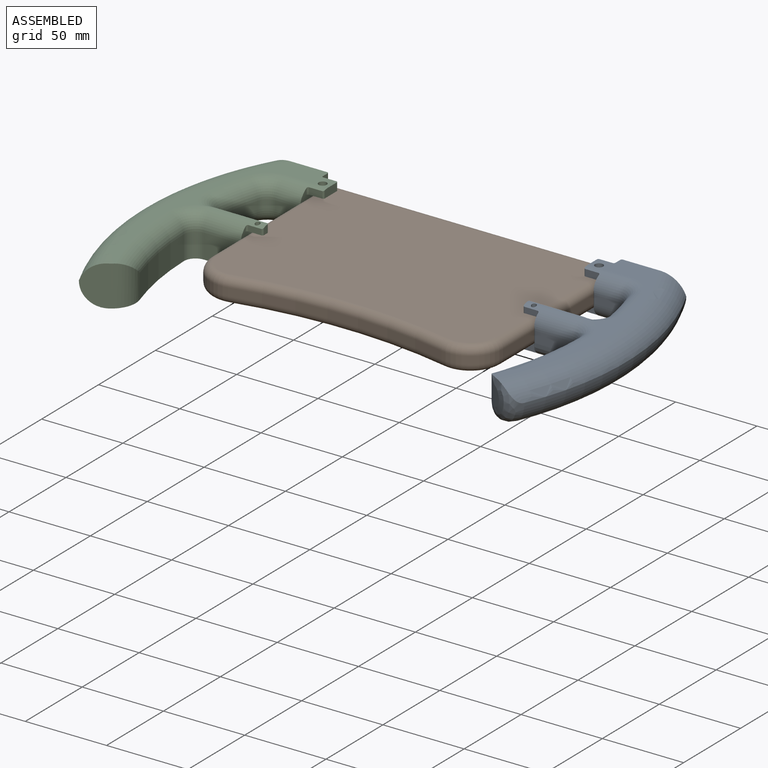
[diagram: assembled view]
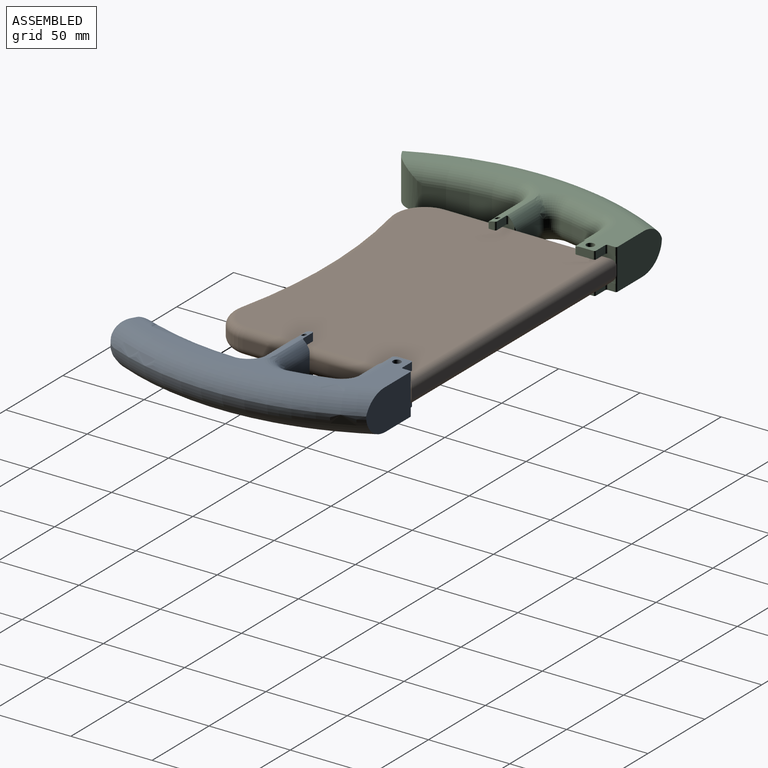
[diagram: assembled view, second angle]
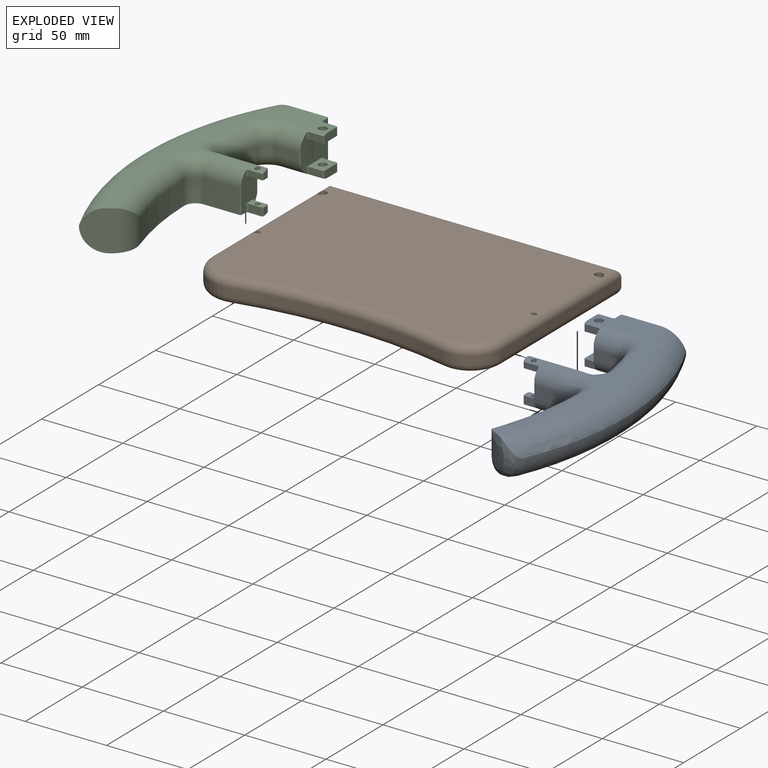
[diagram: exploded view]
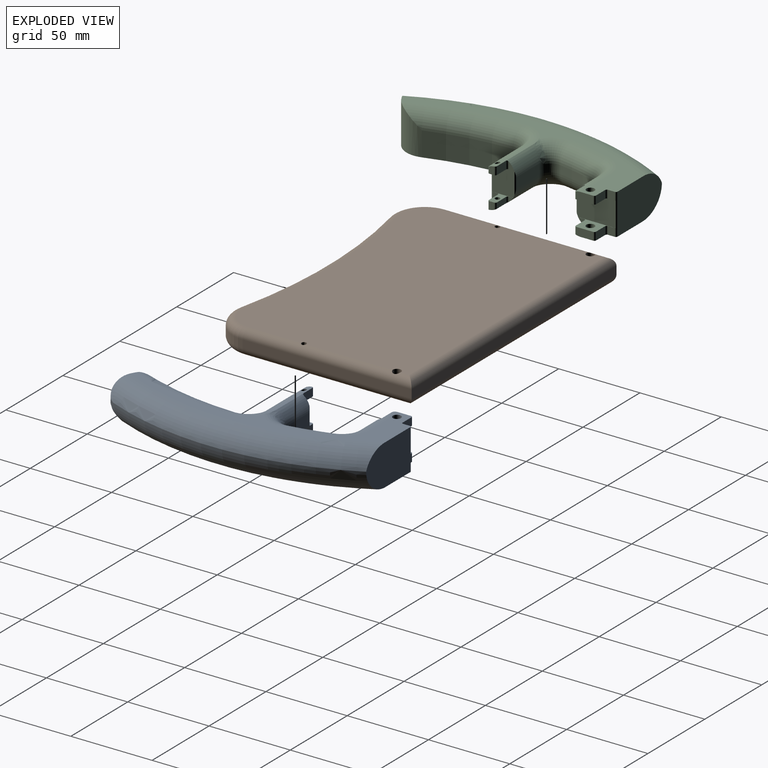
[diagram: exploded view, second angle]
ASSEMBLY  parts=3 mates=2
PART A: 89 faces, bbox 87.5x182.2x32.2 mm
  f0: cylinder r=1mm len=11.62mm, axis (0,0,-1), area 9.3mm2, adj f25,f69,f74,f75
  f1: plane 3.84x3.68mm, normal (-1,0,0), area 8.3mm2, adj f2,f69,f77
  f2: cylinder r=1mm len=4.15mm, axis (0,0,-1), area 6.1mm2, adj f1,f3,f69,f77
  f3: plane 8x4.15mm, normal (0,-1,0), area 33.2mm2, adj f2,f4,f69,f77
  f4: cylinder r=1mm len=4.49mm, axis (0,0,-1), area 6.8mm2, adj f3,f5,f69,f77
  f5: plane 10.5x4.88mm, normal (-1,0,0), area 50.8mm2, adj f4,f6,f55,f69,f77
  f6: cylinder r=1mm len=4.88mm, axis (0,0,-1), area 7.7mm2, adj f5,f7,f55,f77
  f7: plane 8x4.88mm, normal (0,1,0), area 39mm2, adj f6,f8,f55,f77
  f8: cylinder r=1mm len=4.88mm, axis (0,0,-1), area 7.7mm2, adj f7,f9,f55,f77
  f9: plane 4.88x4.25mm, normal (-1,0,0), area 20.7mm2, adj f8,f35,f55,f77
  f10: plane 2.88x2.59mm, normal (-1,0,0), area 4.2mm2, adj f11,f62,f80
  f11: cylinder r=1mm len=3.54mm, axis (0,0,-1), area 5mm2, adj f10,f12,f62,f80
  f12: plane 8x3.54mm, normal (0,-1,0), area 28.3mm2, adj f11,f13,f62,f80
  f13: cylinder r=1mm len=4.04mm, axis (0,0,-1), area 5.9mm2, adj f12,f14,f62,f80
  f14: plane 4.83x3mm, normal (-1,0,0), area 13.5mm2, adj f13,f15,f62,f80
  f15: cylinder r=1mm len=4.88mm, axis (0,0,-1), area 7.6mm2, adj f14,f16,f62,f80
  f16: plane 8x4.88mm, normal (0,1,0), area 39mm2, adj f15,f17,f62,f80
  f17: cylinder r=1mm len=4.88mm, axis (0,0,-1), area 7.1mm2, adj f16,f18,f63,f80
  f18: plane 4.21x3mm, normal (-1,0,0), area 8.1mm2, adj f17,f51,f63,f80
  f19: cylinder r=1mm len=12.96mm, axis (0,0,-1), area 10.8mm2, adj f54,f63,f70,f79
  f20: cylinder r=2.5mm len=5mm, axis (0,0,-1), area 76.6mm2, adj f55,f77
  f21: cylinder r=1.5mm len=4.58mm, axis (0,0,-1), area 43.1mm2, adj f62,f80
  f22: cylinder r=7mm len=8.1mm, axis (0,0,-1), area 63.8mm2, adj f23,f54,f64,f65,f66,f71
  f23: cylinder r=176.15mm len=24.16mm, axis (0,0,-1), area 124.1mm2, adj f22,f24,f67,f72
  f24: cylinder r=7mm len=6.69mm, axis (0,0,-1), area 44.5mm2, adj f23,f25,f68,f73
  f25: plane 14.57x5mm, normal (0,-1,0), area 72.9mm2, adj f0,f24,f69,f74
  f26: plane 3.84x3.68mm, normal (-1,0,0), area 8.3mm2, adj f27,f74,f76
  f27: cylinder r=1mm len=4.15mm, axis (0,0,-1), area 6.1mm2, adj f26,f28,f74,f76
  f28: plane 8x4.15mm, normal (0,-1,0), area 33.2mm2, adj f27,f29,f74,f76
  f29: cylinder r=1mm len=4.49mm, axis (0,0,-1), area 6.8mm2, adj f28,f30,f74,f76
  f30: plane 10.5x4.88mm, normal (-1,0,0), area 50.8mm2, adj f29,f31,f56,f74,f76
  f31: cylinder r=1mm len=4.88mm, axis (0,0,-1), area 7.7mm2, adj f30,f32,f56,f76
  f32: plane 8x4.88mm, normal (0,1,0), area 39mm2, adj f31,f33,f56,f76
  f33: cylinder r=1mm len=4.88mm, axis (0,0,-1), area 7.7mm2, adj f32,f34,f56,f76
  f34: plane 4.88x4.25mm, normal (-1,0,0), area 20.7mm2, adj f33,f35,f56,f76
  f35: cylinder r=1mm len=25mm, axis (0,0,-1), area 32.4mm2, adj f9,f34,f36,f55,f56,f75,f76,f77
  f36: plane 40.91x26.98mm, normal (0,1,0), area 874.9mm2, adj f35,f55,f56,f57,f58
  f37: plane 11.9x4.55mm, normal (-0.5,-0.87,0), area 47.4mm2, adj f59,f85
  f38: cylinder r=176.15mm len=50.64mm, axis (0,0,-1), area 308.9mm2, adj f39,f59,f60,f86
  f39: cylinder r=7mm len=7.1mm, axis (0,0,-1), area 67.9mm2, adj f38,f40,f61,f83,f84
  f40: plane 22.07x6.97mm, normal (0,-1,0), area 152.9mm2, adj f39,f41,f62,f81,f82
  f41: cylinder r=1mm len=14.62mm, axis (0,0,-1), area 11.1mm2, adj f40,f42,f62,f78,f79,f81
  f42: plane 4.32x3mm, normal (-1,0,0), area 9.1mm2, adj f41,f43,f78,f81
  f43: cylinder r=1mm len=4.88mm, axis (0,0,-1), area 7.2mm2, adj f42,f44,f78,f81
  f44: plane 8x4.88mm, normal (0,-1,0), area 39mm2, adj f43,f45,f70,f78
  f45: cylinder r=1mm len=4.88mm, axis (0,0,-1), area 7.6mm2, adj f44,f46,f70,f78
  f46: plane 4.83x3mm, normal (-1,0,0), area 13.5mm2, adj f45,f47,f70,f78
  f47: cylinder r=1mm len=4.04mm, axis (0,0,-1), area 5.9mm2, adj f46,f48,f70,f78
  f48: plane 8x3.54mm, normal (0,1,0), area 28.3mm2, adj f47,f49,f70,f78
  f49: cylinder r=1mm len=3.54mm, axis (0,0,-1), area 5mm2, adj f48,f50,f70,f78
  f50: plane 2.88x2.59mm, normal (-1,0,0), area 4.2mm2, adj f49,f70,f78
  f51: cylinder r=1mm len=0.57mm, axis (0,0,-1), area 0.1mm2, adj f18,f63,f80
  f52: cylinder r=2.5mm len=5mm, axis (0,0,-1), area 76.6mm2, adj f56,f76
  f53: cylinder r=1.5mm len=4.83mm, axis (0,0,-1), area 42.4mm2, adj f70,f78
  f54: plane 19.96x6.34mm, normal (0,1,0), area 126.5mm2, adj f19,f22,f63,f70
  f55: plane 153.08x56.64mm, normal (0,0,1), area 1304.9mm2, adj f5,f6,f7,f8,f9,f20,f35,f36
  f56: plane 144.24x55.1mm, normal (0,0,-1), area 1218.5mm2, adj f30,f31,f32,f33,f34,f35,f36,f52
  f57: torus R=161.02mm, axis (0,0,1), area 3620.9mm2, adj f36,f56,f58,f85,f87
  f58: torus R=161.88mm, axis (0,0,-1), area 2980mm2, adj f36,f55,f57,f85
  f59: cylinder r=15mm len=17.52mm, axis (0,0,-1), area 249.8mm2, adj f37,f38,f60,f85,f87,f88
  f60: torus R=186.15mm, axis (0,0,1), area 951.6mm2, adj f38,f55,f59,f61,f85
  f61: torus R=17mm, axis (0,0,1), area 264.8mm2, adj f39,f55,f60,f62,f65
  f62: cylinder r=10mm len=33.04mm, axis (1,0,0), area 404.9mm2, adj f10,f11,f12,f13,f14,f15,f16,f21
  f63: cylinder r=10mm len=21.96mm, axis (-1,0,0), area 218mm2, adj f17,f18,f19,f51,f54,f62,f64,f79
  f64: bspline ~8.85x5.27mm, area 14.8mm2, adj f22,f62,f63,f65
  f65: bspline ~10.09x9.35mm, area 53.9mm2, adj f22,f61,f64,f66
  f66: torus R=17mm, axis (0,0,1), area 185.7mm2, adj f22,f55,f65,f67
  f67: torus R=186.15mm, axis (0,0,1), area 397.9mm2, adj f23,f55,f66,f68
  f68: torus R=17mm, axis (0,0,1), area 212.5mm2, adj f24,f55,f67,f69
  f69: cylinder r=10mm len=25.57mm, axis (1,0,0), area 281.1mm2, adj f0,f1,f2,f3,f4,f5,f25,f55
  f70: cylinder r=10mm len=30.96mm, axis (1,0,0), area 372.1mm2, adj f19,f44,f45,f46,f47,f48,f49,f50
  f71: torus R=17mm, axis (0,0,1), area 288.7mm2, adj f22,f56,f70,f72,f82,f83
  f72: torus R=186.15mm, axis (0,0,1), area 397.9mm2, adj f23,f56,f71,f73
  f73: torus R=17mm, axis (0,0,1), area 212.5mm2, adj f24,f56,f72,f74
  f74: cylinder r=10mm len=25.57mm, axis (-1,0,0), area 281.1mm2, adj f0,f25,f26,f27,f28,f29,f30,f56
  f75: plane 23.87x15.25mm, normal (-1,0,0), area 362.6mm2, adj f0,f35,f69,f74,f76,f77
  f76: plane 23.02x10.1mm, normal (0,0,1), area 107.7mm2, adj f26,f27,f28,f29,f30,f31,f32,f33
  f77: plane 23.02x10.1mm, normal (0,0,-1), area 107.7mm2, adj f1,f2,f3,f4,f5,f6,f7,f8
  f78: plane 13.02x10.1mm, normal (0,0,1), area 44.5mm2, adj f41,f42,f43,f44,f45,f46,f47,f48
  f79: plane 15.25x13.87mm, normal (-1,0,0), area 210.1mm2, adj f19,f41,f62,f63,f70,f78,f80
  f80: plane 12.84x10.1mm, normal (0,0,-1), area 44.2mm2, adj f10,f11,f12,f13,f14,f15,f16,f17
  f81: bspline ~25.24x8.06mm, area 209.4mm2, adj f40,f41,f42,f43,f70,f82
  f82: bspline ~8.14x5.21mm, area 24.6mm2, adj f40,f71,f81,f83
  f83: bspline ~9x8.15mm, area 43.8mm2, adj f39,f71,f82,f84
  f84: bspline ~15.81x14.18mm, area 168.9mm2, adj f39,f56,f83,f86
  f85: bspline ~30.23x22.29mm, area 379.6mm2, adj f37,f55,f57,f58,f59,f60,f87
  f86: bspline ~53.36x17.2mm, area 765.2mm2, adj f38,f56,f84,f88
  f87: bspline ~9.05x8.29mm, area 35.3mm2, adj f57,f59,f85,f88
  f88: bspline ~17.69x12.45mm, area 212.3mm2, adj f56,f59,f86,f87
PART B: 24 faces, bbox 183.3x125.6x15 mm
  f0: plane 103.96x5mm, normal (-1,0,0), area 519.8mm2, adj f1,f9,f13,f19
  f1: cylinder r=20mm len=24.36mm, axis (0,0,-1), area 179mm2, adj f0,f2,f12,f18
  f2: cylinder r=301.19mm len=131.28mm, axis (0,0,-1), area 661.7mm2, adj f1,f3,f14,f20
  f3: cylinder r=20mm len=24.36mm, axis (0,0,-1), area 179mm2, adj f2,f4,f16,f22
  f4: plane 103.96x5mm, normal (1,0,0), area 519.8mm2, adj f3,f9,f17,f23
  f5: cylinder r=2.5mm len=15mm, axis (0,0,-1), area 230.5mm2, adj f10,f11,f13,f19
  f6: cylinder r=1.5mm len=15mm, axis (0,0,-1), area 140.3mm2, adj f10,f11,f13,f19
  f7: cylinder r=2.5mm len=15mm, axis (0,0,-1), area 230.5mm2, adj f10,f11,f17,f23
  f8: cylinder r=1.5mm len=15mm, axis (0,0,-1), area 140.3mm2, adj f10,f11,f17,f23
  f9: plane 180x5mm, normal (0,1,0), area 900mm2, adj f0,f4,f15,f21
  f10: plane 170x113.96mm, normal (0,0,1), area 18544.5mm2, adj f5,f6,f7,f8,f12,f13,f14,f15
  f11: plane 170x113.96mm, normal (0,0,-1), area 18544.5mm2, adj f5,f6,f7,f8,f18,f19,f20,f21
  f12: torus R=15mm, axis (0,0,1), area 255.7mm2, adj f1,f10,f13,f14
  f13: cylinder r=5mm len=103.96mm, axis (0,1,0), area 788.5mm2, adj f0,f5,f6,f10,f12,f15
  f14: torus R=306.19mm, axis (0,0,1), area 1045.7mm2, adj f2,f10,f12,f16
  f15: cylinder r=5mm len=180mm, axis (1,0,0), area 1385.2mm2, adj f9,f10,f13,f17
  f16: torus R=15mm, axis (0,0,1), area 255.7mm2, adj f3,f10,f14,f17
  f17: cylinder r=5mm len=103.96mm, axis (0,-1,0), area 788.5mm2, adj f4,f7,f8,f10,f15,f16
  f18: torus R=15mm, axis (0,0,1), area 255.7mm2, adj f1,f11,f19,f20
  f19: cylinder r=5mm len=103.96mm, axis (0,-1,0), area 788.5mm2, adj f0,f5,f6,f11,f18,f21
  f20: torus R=306.19mm, axis (0,0,1), area 1045.7mm2, adj f2,f11,f18,f22
  f21: cylinder r=5mm len=180mm, axis (-1,0,0), area 1385.2mm2, adj f9,f11,f19,f23
  f22: torus R=15mm, axis (0,0,1), area 255.7mm2, adj f3,f11,f20,f23
  f23: cylinder r=5mm len=103.96mm, axis (0,1,0), area 788.5mm2, adj f4,f7,f8,f11,f21,f22
PART C: 81 faces, bbox 86x182.3x26.1 mm
  f0: plane 3.84x3.68mm, normal (1,0,0), area 8.3mm2, adj f1,f69,f77
  f1: cylinder r=1mm len=4.15mm, axis (0,0,-1), area 6.1mm2, adj f0,f2,f69,f77
  f2: plane 8x4.15mm, normal (0,-1,0), area 33.2mm2, adj f1,f3,f69,f77
  f3: cylinder r=1mm len=4.49mm, axis (0,0,-1), area 6.8mm2, adj f2,f4,f69,f77
  f4: plane 10.5x4.88mm, normal (1,0,0), area 50.8mm2, adj f3,f5,f55,f69,f77
  f5: cylinder r=1mm len=4.88mm, axis (0,0,-1), area 7.7mm2, adj f4,f6,f55,f77
  f6: plane 8x4.88mm, normal (0,1,0), area 39mm2, adj f5,f7,f55,f77
  f7: cylinder r=1mm len=4.88mm, axis (0,0,-1), area 7.7mm2, adj f6,f8,f55,f77
  f8: plane 4.88x4.25mm, normal (1,0,0), area 20.7mm2, adj f7,f31,f55,f77
  f9: plane 2.88x2.59mm, normal (1,0,0), area 4.2mm2, adj f10,f62,f80
  f10: cylinder r=1mm len=3.54mm, axis (0,0,-1), area 5mm2, adj f9,f11,f62,f80
  f11: plane 8x3.54mm, normal (0,-1,0), area 28.3mm2, adj f10,f12,f62,f80
  f12: cylinder r=1mm len=4.04mm, axis (0,0,-1), area 5.9mm2, adj f11,f13,f62,f80
  f13: plane 4.83x3mm, normal (1,0,0), area 13.5mm2, adj f12,f14,f62,f80
  f14: cylinder r=1mm len=4.88mm, axis (0,0,-1), area 7.6mm2, adj f13,f15,f62,f80
  f15: plane 8x4.88mm, normal (0,1,0), area 39mm2, adj f14,f16,f62,f80
  f16: cylinder r=1mm len=4.88mm, axis (0,0,-1), area 7.1mm2, adj f15,f17,f63,f80
  f17: plane 4.21x3mm, normal (1,0,0), area 8.1mm2, adj f16,f47,f63,f80
  f18: cylinder r=1mm len=12.96mm, axis (0,0,-1), area 10.8mm2, adj f48,f63,f70,f79
  f19: cylinder r=2.5mm len=5mm, axis (0,0,-1), area 76.6mm2, adj f55,f77
  f20: cylinder r=1mm len=11.62mm, axis (0,0,-1), area 9.3mm2, adj f52,f69,f74,f75
  f21: cylinder r=1.5mm len=4.58mm, axis (0,0,-1), area 43.1mm2, adj f62,f80
  f22: plane 3.84x3.68mm, normal (1,0,0), area 8.3mm2, adj f23,f74,f76
  f23: cylinder r=1mm len=4.15mm, axis (0,0,-1), area 6.1mm2, adj f22,f24,f74,f76
  f24: plane 8x4.15mm, normal (0,-1,0), area 33.2mm2, adj f23,f25,f74,f76
  f25: cylinder r=1mm len=4.49mm, axis (0,0,-1), area 6.8mm2, adj f24,f26,f74,f76
  f26: plane 10.5x4.88mm, normal (1,0,0), area 50.8mm2, adj f25,f27,f56,f74,f76
  f27: cylinder r=1mm len=4.88mm, axis (0,0,-1), area 7.7mm2, adj f26,f28,f56,f76
  f28: plane 8x4.88mm, normal (0,1,0), area 39mm2, adj f27,f29,f56,f76
  f29: cylinder r=1mm len=4.88mm, axis (0,0,-1), area 7.7mm2, adj f28,f30,f56,f76
  f30: plane 4.88x4.25mm, normal (1,0,0), area 20.7mm2, adj f29,f31,f56,f76
  f31: cylinder r=1mm len=25mm, axis (0,0,-1), area 32.4mm2, adj f8,f30,f32,f55,f56,f75,f76,f77
  f32: plane 38.93x25mm, normal (0,1,0), area 874.9mm2, adj f31,f55,f56,f57,f58
  f33: plane 25.45x13.53mm, normal (0.5,-0.87,0), area 290.7mm2, adj f55,f56,f57,f58,f59
  f34: cylinder r=176.15mm len=50.64mm, axis (0,0,-1), area 772.3mm2, adj f35,f56,f59,f60
  f35: cylinder r=7mm len=15mm, axis (0,0,-1), area 166.4mm2, adj f34,f36,f56,f61
  f36: plane 22.04x15mm, normal (0,-1,0), area 330.6mm2, adj f35,f37,f56,f62
  f37: cylinder r=1mm len=18.31mm, axis (0,0,-1), area 20.8mm2, adj f36,f38,f56,f62,f78,f79
  f38: plane 4.88x3mm, normal (1,0,0), area 14.6mm2, adj f37,f39,f56,f78
  f39: cylinder r=1mm len=4.88mm, axis (0,0,-1), area 7.7mm2, adj f38,f40,f56,f78
  f40: plane 8x4.88mm, normal (0,-1,0), area 39mm2, adj f39,f41,f70,f78
  f41: cylinder r=1mm len=4.88mm, axis (0,0,-1), area 7.6mm2, adj f40,f42,f70,f78
  f42: plane 4.83x3mm, normal (1,0,0), area 13.5mm2, adj f41,f43,f70,f78
  f43: cylinder r=1mm len=4.04mm, axis (0,0,-1), area 5.9mm2, adj f42,f44,f70,f78
  f44: plane 8x3.54mm, normal (0,1,0), area 28.3mm2, adj f43,f45,f70,f78
  f45: cylinder r=1mm len=3.54mm, axis (0,0,-1), area 5mm2, adj f44,f46,f70,f78
  f46: plane 2.88x2.59mm, normal (1,0,0), area 4.2mm2, adj f45,f70,f78
  f47: cylinder r=1mm len=0.57mm, axis (0,0,-1), area 0.1mm2, adj f17,f63,f80
  f48: plane 19.96x6.34mm, normal (0,1,0), area 126.5mm2, adj f18,f49,f63,f70
  f49: cylinder r=7mm len=8.1mm, axis (0,0,-1), area 63.8mm2, adj f48,f50,f64,f65,f66,f71
  f50: cylinder r=176.15mm len=24.16mm, axis (0,0,-1), area 124.1mm2, adj f49,f51,f67,f72
  f51: cylinder r=7mm len=6.69mm, axis (0,0,-1), area 44.5mm2, adj f50,f52,f68,f73
  f52: plane 14.57x5mm, normal (0,-1,0), area 72.9mm2, adj f20,f51,f69,f74
  f53: cylinder r=2.5mm len=5mm, axis (0,0,-1), area 76.6mm2, adj f56,f76
  f54: cylinder r=1.5mm len=4.83mm, axis (0,0,-1), area 42.4mm2, adj f70,f78
  f55: plane 152.92x55.93mm, normal (0,0,1), area 1306.6mm2, adj f4,f5,f6,f7,f8,f19,f31,f32
  f56: plane 152.49x55.08mm, normal (0,0,-1), area 2081.4mm2, adj f26,f27,f28,f29,f30,f31,f32,f33
  f57: torus R=161.02mm, axis (0,0,1), area 3849mm2, adj f32,f33,f56,f58
  f58: torus R=161.88mm, axis (0,0,-1), area 3012.5mm2, adj f32,f33,f55,f57
  f59: cylinder r=15mm len=25mm, axis (0,0,-1), area 441.4mm2, adj f33,f34,f55,f56,f60
  f60: torus R=186.15mm, axis (0,0,1), area 952mm2, adj f34,f55,f59,f61
  f61: torus R=17mm, axis (0,0,1), area 264.8mm2, adj f35,f55,f60,f62,f65
  f62: cylinder r=10mm len=33.04mm, axis (-1,0,0), area 404.9mm2, adj f9,f10,f11,f12,f13,f14,f15,f21
  f63: cylinder r=10mm len=21.96mm, axis (1,0,0), area 218mm2, adj f16,f17,f18,f47,f48,f62,f64,f79
  f64: bspline ~8.85x5.27mm, area 14.8mm2, adj f49,f62,f63,f65
  f65: bspline ~10.09x9.35mm, area 53.9mm2, adj f49,f61,f64,f66
  f66: torus R=17mm, axis (0,0,1), area 185.7mm2, adj f49,f55,f65,f67
  f67: torus R=186.15mm, axis (0,0,1), area 397.9mm2, adj f50,f55,f66,f68
  f68: torus R=17mm, axis (0,0,1), area 212.5mm2, adj f51,f55,f67,f69
  f69: cylinder r=10mm len=25.57mm, axis (-1,0,0), area 281.1mm2, adj f0,f1,f2,f3,f4,f20,f52,f55
  f70: cylinder r=10mm len=30.96mm, axis (-1,0,0), area 372.1mm2, adj f18,f40,f41,f42,f43,f44,f45,f46
  f71: torus R=17mm, axis (0,0,1), area 288.7mm2, adj f49,f56,f70,f72
  f72: torus R=186.15mm, axis (0,0,1), area 397.9mm2, adj f50,f56,f71,f73
  f73: torus R=17mm, axis (0,0,1), area 212.5mm2, adj f51,f56,f72,f74
  f74: cylinder r=10mm len=25.57mm, axis (1,0,0), area 281.1mm2, adj f20,f22,f23,f24,f25,f26,f52,f56
  f75: plane 23.87x15.25mm, normal (1,0,0), area 362.6mm2, adj f20,f31,f69,f74,f76,f77
  f76: plane 23.02x10.1mm, normal (0,0,1), area 107.7mm2, adj f22,f23,f24,f25,f26,f27,f28,f29
  f77: plane 23.02x10.1mm, normal (0,0,-1), area 107.7mm2, adj f0,f1,f2,f3,f4,f5,f6,f7
  f78: plane 13.02x10.1mm, normal (0,0,1), area 44.2mm2, adj f37,f38,f39,f40,f41,f42,f43,f44
  f79: plane 15.25x13.87mm, normal (1,0,0), area 210.1mm2, adj f18,f37,f62,f63,f70,f78,f80
  f80: plane 12.84x10.1mm, normal (0,0,-1), area 44.2mm2, adj f9,f10,f11,f12,f13,f14,f15,f16
PLACE A t=(158.78,13.15,-27.74)mm
PLACE B t=(88.83,20.11,-35.37)mm
PLACE C t=(18.87,13.15,-27.74)mm
MATE fastened C.f19 <-> B.f5  axis (0,0,-1) through (3.83,77.3,-35.37)mm
MATE fastened A.f20 <-> B.f7  axis (0,0,-1) through (173.83,77.3,-35.37)mm
